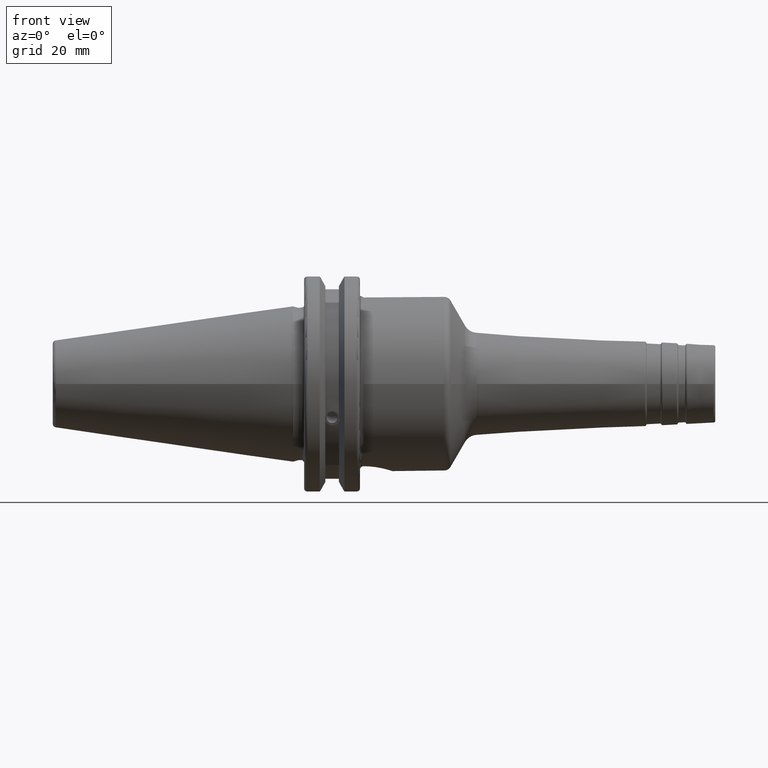
[diagram: clean part render]
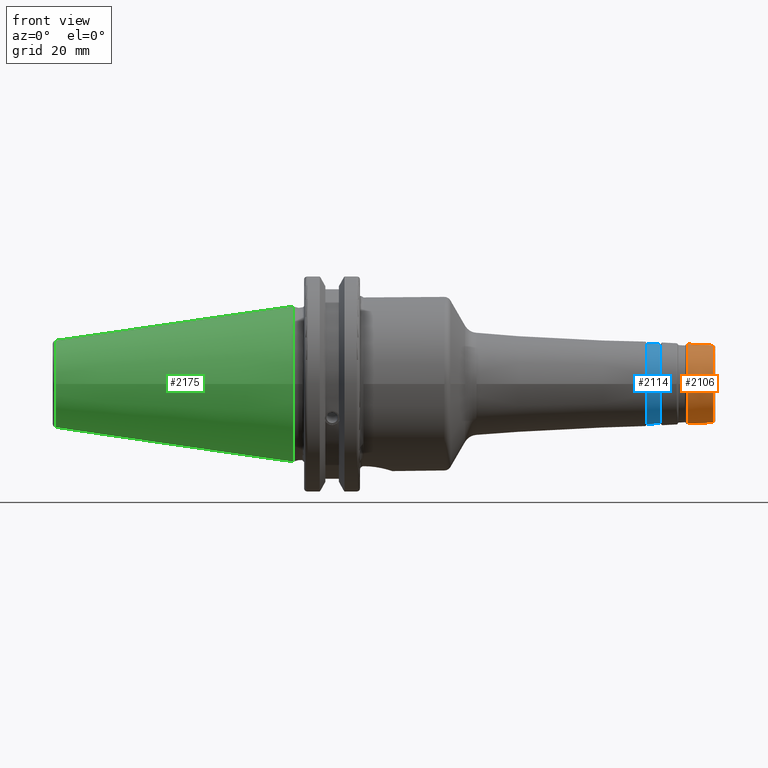
[diagram: same view with three faces highlighted in distinct colors, each labeled with its STEP entity id]
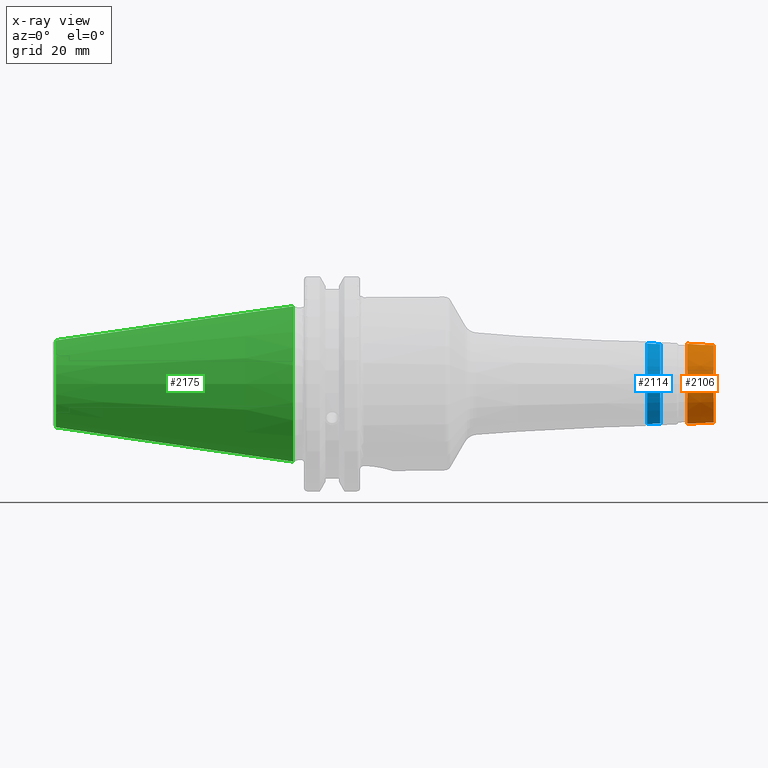
[diagram: x-ray of the same camera — body ghosted, the three highlighted faces saturated]
A machine part, front view with three faces highlighted in distinct colors.
The next image is the same camera in x-ray (body ghosted, the three faces saturated) — at least one of them is partly hidden behind the body in this view.
Their STEP definitions:

[orange] entity #2106 — the highlighted conical surface has half-angle 3 deg.
#195=FACE_OUTER_BOUND('',#305,.T.);
#305=EDGE_LOOP('',(#1463,#1464,#1465,#1466,#1467,#1468,#1469,#1470));
#424=LINE('',#3421,#525);
#525=VECTOR('',#2634,11.2144933145358);
#648=CIRCLE('',#2266,11.0248324840198);
#649=CIRCLE('',#2267,11.0248324840198);
#650=CIRCLE('',#2268,11.0248324840198);
#652=CIRCLE('',#2271,11.4169001577015);
#653=CIRCLE('',#2272,11.4169001577015);
#654=CIRCLE('',#2273,11.4169001577015);
#828=VERTEX_POINT('',#3411);
#829=VERTEX_POINT('',#3413);
#830=VERTEX_POINT('',#3415);
#831=VERTEX_POINT('',#3420);
#832=VERTEX_POINT('',#3422);
#833=VERTEX_POINT('',#3424);
#1083=EDGE_CURVE('',#828,#829,#648,.T.);
#1084=EDGE_CURVE('',#829,#830,#649,.T.);
#1085=EDGE_CURVE('',#830,#828,#650,.T.);
#1087=EDGE_CURVE('',#829,#831,#424,.T.);
#1088=EDGE_CURVE('',#832,#831,#652,.T.);
#1089=EDGE_CURVE('',#833,#832,#653,.T.);
#1090=EDGE_CURVE('',#831,#833,#654,.T.);
#1463=ORIENTED_EDGE('',*,*,#1085,.F.);
#1464=ORIENTED_EDGE('',*,*,#1084,.F.);
#1465=ORIENTED_EDGE('',*,*,#1087,.T.);
#1466=ORIENTED_EDGE('',*,*,#1088,.F.);
#1467=ORIENTED_EDGE('',*,*,#1089,.F.);
#1468=ORIENTED_EDGE('',*,*,#1090,.F.);
#1469=ORIENTED_EDGE('',*,*,#1087,.F.);
#1470=ORIENTED_EDGE('',*,*,#1083,.F.);
#2075=CONICAL_SURFACE('',#2270,11.2144933145358,0.0523598775598299);
#2106=ADVANCED_FACE('',(#195),#2075,.T.);
#2266=AXIS2_PLACEMENT_3D('',#3414,#2624,#2625);
#2267=AXIS2_PLACEMENT_3D('',#3416,#2626,#2627);
#2268=AXIS2_PLACEMENT_3D('',#3417,#2628,#2629);
#2270=AXIS2_PLACEMENT_3D('',#3419,#2632,#2633);
#2271=AXIS2_PLACEMENT_3D('',#3423,#2635,#2636);
#2272=AXIS2_PLACEMENT_3D('',#3425,#2637,#2638);
#2273=AXIS2_PLACEMENT_3D('',#3426,#2639,#2640);
#2624=DIRECTION('center_axis',(1.,0.,0.));
#2625=DIRECTION('ref_axis',(0.,-1.,3.06161699786838E-17));
#2626=DIRECTION('center_axis',(1.,0.,0.));
#2627=DIRECTION('ref_axis',(0.,-1.,3.06161699786838E-17));
#2628=DIRECTION('center_axis',(1.,0.,0.));
#2629=DIRECTION('ref_axis',(0.,-1.,3.06161699786838E-17));
#2632=DIRECTION('center_axis',(-1.,0.,0.));
#2633=DIRECTION('ref_axis',(0.,1.,0.));
#2634=DIRECTION('',(-0.998629534754574,-0.0523359562429439,-6.40930612932371E-18));
#2635=DIRECTION('center_axis',(-1.,0.,0.));
#2636=DIRECTION('ref_axis',(0.,-1.,3.06161699786838E-17));
#2637=DIRECTION('center_axis',(-1.,0.,0.));
#2638=DIRECTION('ref_axis',(0.,-1.,3.06161699786838E-17));
#2639=DIRECTION('center_axis',(-1.,0.,0.));
#2640=DIRECTION('ref_axis',(0.,-1.,3.06161699786838E-17));
#3411=CARTESIAN_POINT('',(119.526167978121,-1.35015258126907E-15,11.0248324840198));
#3413=CARTESIAN_POINT('',(119.526167978121,-11.0248324840198,-1.35015258126907E-15));
#3414=CARTESIAN_POINT('Origin',(119.526167978121,0.,-1.68769072658633E-15));
#3415=CARTESIAN_POINT('',(119.526167978121,11.0248324840198,-6.75076290634533E-16));
#3416=CARTESIAN_POINT('Origin',(119.526167978121,0.,-1.68769072658633E-15));
#3417=CARTESIAN_POINT('Origin',(119.526167978121,0.,-1.68769072658633E-15));
#3419=CARTESIAN_POINT('Origin',(115.907223746739,0.,0.));
#3420=CARTESIAN_POINT('',(112.045071105762,-11.4169001577015,-1.39816702343141E-15));
#3421=CARTESIAN_POINT('',(115.907223746739,-11.2144933145358,-1.37337933417057E-15));
#3422=CARTESIAN_POINT('',(112.045071105762,11.4169001577015,-3.49541755857852E-15));
#3423=CARTESIAN_POINT('Origin',(112.045071105762,0.,-1.74770877928926E-15));
#3424=CARTESIAN_POINT('',(112.045071105762,-1.39816702343141E-15,11.4169001577015));
#3425=CARTESIAN_POINT('Origin',(112.045071105762,0.,-1.74770877928926E-15));
#3426=CARTESIAN_POINT('Origin',(112.045071105762,0.,-1.74770877928926E-15));

[blue] entity #2114 — the highlighted conical surface has half-angle 3 deg.
#203=FACE_OUTER_BOUND('',#314,.T.);
#314=EDGE_LOOP('',(#1523,#1524,#1525,#1526,#1527,#1528,#1529,#1530));
#428=LINE('',#3494,#529);
#529=VECTOR('',#2718,11.4158035570934);
#677=CIRCLE('',#2303,11.3171748802925);
#682=CIRCLE('',#2308,11.3171748802925);
#683=CIRCLE('',#2309,11.3171748802925);
#684=CIRCLE('',#2311,11.5144322338942);
#685=CIRCLE('',#2312,11.5144322338942);
#686=CIRCLE('',#2313,11.5144322338942);
#854=VERTEX_POINT('',#3479);
#855=VERTEX_POINT('',#3480);
#859=VERTEX_POINT('',#3489);
#860=VERTEX_POINT('',#3493);
#861=VERTEX_POINT('',#3495);
#862=VERTEX_POINT('',#3497);
#1116=EDGE_CURVE('',#854,#855,#677,.T.);
#1121=EDGE_CURVE('',#855,#859,#682,.T.);
#1122=EDGE_CURVE('',#859,#854,#683,.T.);
#1123=EDGE_CURVE('',#859,#860,#428,.T.);
#1124=EDGE_CURVE('',#861,#860,#684,.T.);
#1125=EDGE_CURVE('',#862,#861,#685,.T.);
#1126=EDGE_CURVE('',#860,#862,#686,.T.);
#1523=ORIENTED_EDGE('',*,*,#1116,.F.);
#1524=ORIENTED_EDGE('',*,*,#1122,.F.);
#1525=ORIENTED_EDGE('',*,*,#1123,.T.);
#1526=ORIENTED_EDGE('',*,*,#1124,.F.);
#1527=ORIENTED_EDGE('',*,*,#1125,.F.);
#1528=ORIENTED_EDGE('',*,*,#1126,.F.);
#1529=ORIENTED_EDGE('',*,*,#1123,.F.);
#1530=ORIENTED_EDGE('',*,*,#1121,.F.);
#2079=CONICAL_SURFACE('',#2310,11.4158035570934,0.0523598775598297);
#2114=ADVANCED_FACE('',(#203),#2079,.T.);
#2303=AXIS2_PLACEMENT_3D('',#3481,#2702,#2703);
#2308=AXIS2_PLACEMENT_3D('',#3490,#2712,#2713);
#2309=AXIS2_PLACEMENT_3D('',#3491,#2714,#2715);
#2310=AXIS2_PLACEMENT_3D('',#3492,#2716,#2717);
#2311=AXIS2_PLACEMENT_3D('',#3496,#2719,#2720);
#2312=AXIS2_PLACEMENT_3D('',#3498,#2721,#2722);
#2313=AXIS2_PLACEMENT_3D('',#3499,#2723,#2724);
#2702=DIRECTION('center_axis',(1.,0.,0.));
#2703=DIRECTION('ref_axis',(0.,-1.,3.06161699786838E-17));
#2712=DIRECTION('center_axis',(1.,0.,0.));
#2713=DIRECTION('ref_axis',(0.,-1.,3.06161699786838E-17));
#2714=DIRECTION('center_axis',(1.,0.,0.));
#2715=DIRECTION('ref_axis',(0.,-1.,3.06161699786838E-17));
#2716=DIRECTION('center_axis',(-1.,0.,0.));
#2717=DIRECTION('ref_axis',(0.,1.,0.));
#2718=DIRECTION('',(-0.998629534754574,-0.0523359562429436,-6.40930612932369E-18));
#2719=DIRECTION('center_axis',(-1.,0.,0.));
#2720=DIRECTION('ref_axis',(0.,-1.,3.06161699786838E-17));
#2721=DIRECTION('center_axis',(-1.,0.,0.));
#2722=DIRECTION('ref_axis',(0.,-1.,3.06161699786838E-17));
#2723=DIRECTION('center_axis',(-1.,0.,0.));
#2724=DIRECTION('ref_axis',(0.,-1.,3.06161699786838E-17));
#3479=CARTESIAN_POINT('',(104.394281450576,11.3171748802925,-6.92977099627054E-16));
#3480=CARTESIAN_POINT('',(104.394281450576,-1.38595419925411E-15,11.3171748802925));
#3481=CARTESIAN_POINT('Origin',(104.394281450576,0.,-1.73244274906763E-15));
#3489=CARTESIAN_POINT('',(104.394281450576,-11.3171748802925,-1.38595419925411E-15));
#3490=CARTESIAN_POINT('Origin',(104.394281450576,0.,-1.73244274906763E-15));
#3491=CARTESIAN_POINT('Origin',(104.394281450576,0.,-1.73244274906763E-15));
#3492=CARTESIAN_POINT('Origin',(102.512334187209,0.,0.));
#3493=CARTESIAN_POINT('',(100.630386923842,-11.5144322338942,-1.41011125792377E-15));
#3494=CARTESIAN_POINT('',(102.512334187209,-11.4158035570934,-1.39803272858894E-15));
#3495=CARTESIAN_POINT('',(100.630386923842,11.5144322338942,-3.52527814480942E-15));
#3496=CARTESIAN_POINT('Origin',(100.630386923842,0.,-1.76263907240471E-15));
#3497=CARTESIAN_POINT('',(100.630386923842,-1.41011125792377E-15,11.5144322338942));
#3498=CARTESIAN_POINT('Origin',(100.630386923842,0.,-1.76263907240471E-15));
#3499=CARTESIAN_POINT('Origin',(100.630386923842,0.,-1.76263907240471E-15));

[green] entity #2175 — the highlighted conical surface has half-angle 8.297 deg.
#264=FACE_OUTER_BOUND('',#385,.T.);
#385=EDGE_LOOP('',(#1932,#1933,#1934,#1935,#1936,#1937,#1938));
#497=LINE('',#4198,#598);
#598=VECTOR('',#3131,17.2484375);
#767=CIRCLE('',#2471,12.3966635780937);
#768=CIRCLE('',#2472,12.3966635780937);
#772=CIRCLE('',#2476,12.3966635780937);
#775=CIRCLE('',#2481,22.225);
#776=CIRCLE('',#2482,22.225);
#1013=VERTEX_POINT('',#4177);
#1014=VERTEX_POINT('',#4178);
#1015=VERTEX_POINT('',#4180);
#1020=VERTEX_POINT('',#4194);
#1021=VERTEX_POINT('',#4195);
#1336=EDGE_CURVE('',#1013,#1014,#767,.T.);
#1337=EDGE_CURVE('',#1014,#1015,#768,.T.);
#1341=EDGE_CURVE('',#1015,#1013,#772,.T.);
#1344=EDGE_CURVE('',#1020,#1021,#775,.T.);
#1345=EDGE_CURVE('',#1021,#1020,#776,.T.);
#1346=EDGE_CURVE('',#1021,#1014,#497,.T.);
#1932=ORIENTED_EDGE('',*,*,#1344,.F.);
#1933=ORIENTED_EDGE('',*,*,#1345,.F.);
#1934=ORIENTED_EDGE('',*,*,#1346,.T.);
#1935=ORIENTED_EDGE('',*,*,#1336,.F.);
#1936=ORIENTED_EDGE('',*,*,#1341,.F.);
#1937=ORIENTED_EDGE('',*,*,#1337,.F.);
#1938=ORIENTED_EDGE('',*,*,#1346,.F.);
#2088=CONICAL_SURFACE('',#2480,17.2484375,0.144812498238939);
#2175=ADVANCED_FACE('',(#264),#2088,.T.);
#2471=AXIS2_PLACEMENT_3D('',#4179,#3107,#3108);
#2472=AXIS2_PLACEMENT_3D('',#4181,#3109,#3110);
#2476=AXIS2_PLACEMENT_3D('',#4187,#3117,#3118);
#2480=AXIS2_PLACEMENT_3D('',#4193,#3125,#3126);
#2481=AXIS2_PLACEMENT_3D('',#4196,#3127,#3128);
#2482=AXIS2_PLACEMENT_3D('',#4197,#3129,#3130);
#3107=DIRECTION('center_axis',(-1.,0.,0.));
#3108=DIRECTION('ref_axis',(0.,-1.,3.06161699786838E-17));
#3109=DIRECTION('center_axis',(-1.,0.,0.));
#3110=DIRECTION('ref_axis',(0.,-1.,3.06161699786838E-17));
#3117=DIRECTION('center_axis',(-1.,0.,0.));
#3118=DIRECTION('ref_axis',(0.,-1.,3.06161699786838E-17));
#3125=DIRECTION('center_axis',(1.,0.,0.));
#3126=DIRECTION('ref_axis',(0.,1.,0.));
#3127=DIRECTION('center_axis',(1.,0.,0.));
#3128=DIRECTION('ref_axis',(0.,0.,-1.));
#3129=DIRECTION('center_axis',(1.,0.,0.));
#3130=DIRECTION('ref_axis',(0.,0.,-1.));
#3131=DIRECTION('',(-0.989532981063282,0.144306893071729,1.76724974695192E-17));
#4177=CARTESIAN_POINT('',(-67.3943068930717,12.3966635780937,-3.79538359275475E-15));
#4178=CARTESIAN_POINT('',(-67.3943068930718,-12.3966635780937,-1.5181534371019E-15));
#4179=CARTESIAN_POINT('Origin',(-67.3943068930717,0.,-1.89769179637738E-15));
#4180=CARTESIAN_POINT('',(-67.3943068930717,-1.5181534371019E-15,12.3966635780937));
#4181=CARTESIAN_POINT('Origin',(-67.3943068930717,0.,-1.89769179637738E-15));
#4187=CARTESIAN_POINT('Origin',(-67.3943068930717,0.,-1.89769179637738E-15));
#4193=CARTESIAN_POINT('Origin',(-34.125,0.,0.));
#4194=CARTESIAN_POINT('',(0.,22.225,0.));
#4195=CARTESIAN_POINT('',(0.,-22.225,-2.72177751110499E-15));
#4196=CARTESIAN_POINT('Origin',(0.,0.,0.));
#4197=CARTESIAN_POINT('Origin',(0.,0.,0.));
#4198=CARTESIAN_POINT('',(-34.125,-17.2484375,-2.11232437746682E-15));